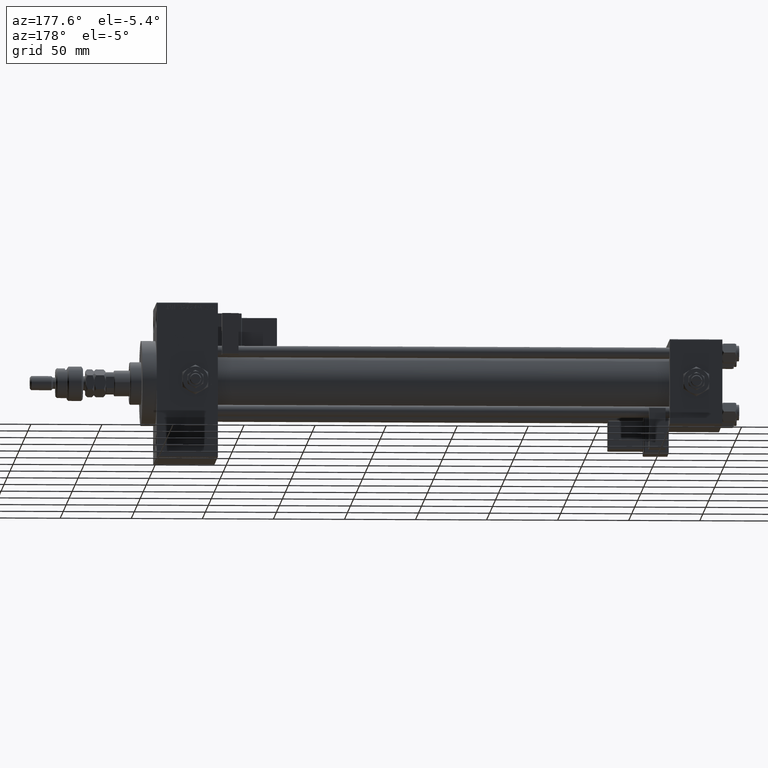
[diagram: clean part render]
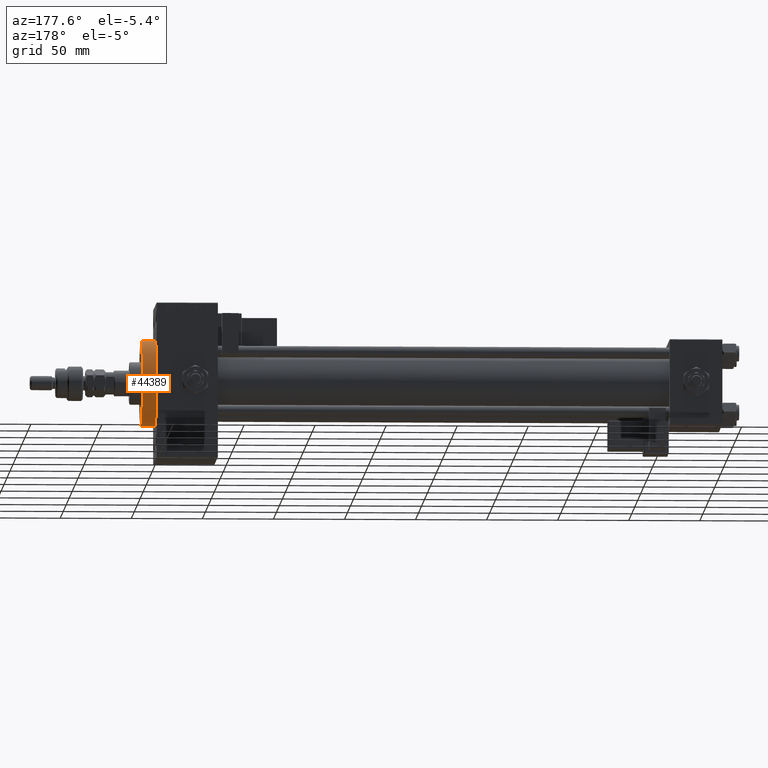
[diagram: same view with one face highlighted and labeled with its STEP entity id]
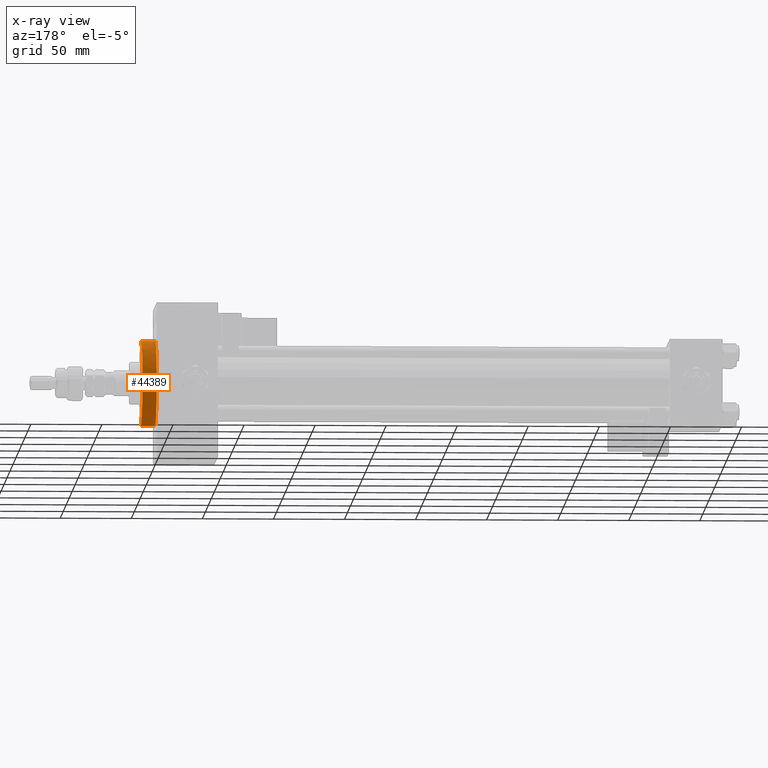
[diagram: x-ray of the same camera — body ghosted, the highlighted face saturated]
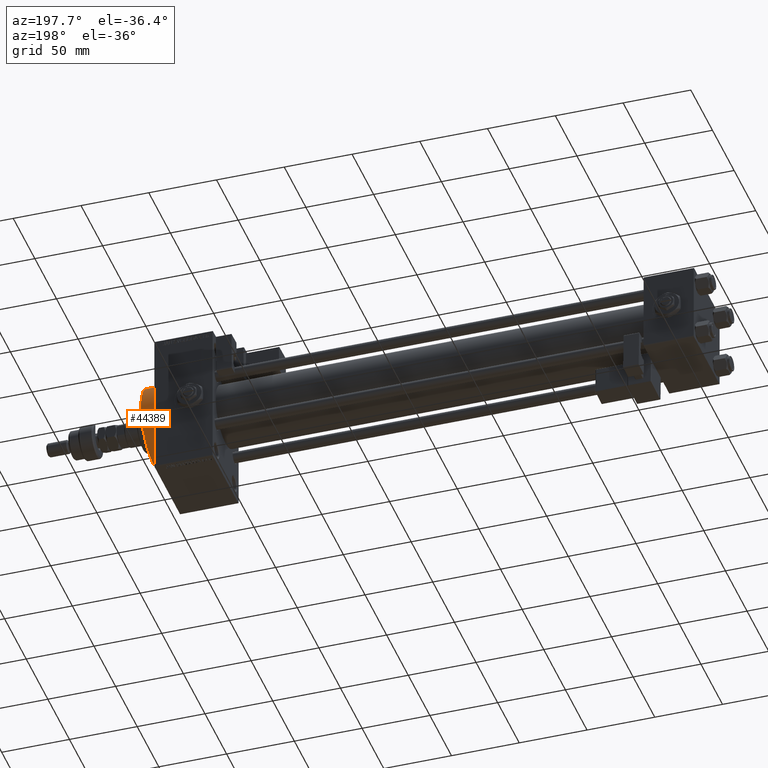
[diagram: same view with one face highlighted and labeled with its STEP entity id]
A machine part, auxiliary view. The second image highlights one B-rep face of the part: STEP entity #44389.
The next image is the same camera in x-ray: the body ghosted, the highlighted face saturated — about 0% of this face is hidden behind the body in this view.
A second angle (auxiliary view) of the same face is appended — the face is thin or edge-on in the first view.
In plain terms, the highlighted cylindrical surface (partial cylindrical patch) has radius 30 mm, axis along (-1, -0, -0).
Its self-contained STEP definition (entity closure, byte-faithful):
#2043 = FACE_OUTER_BOUND ( 'NONE', #20277, .T. ) ;
#2097 = CARTESIAN_POINT ( 'NONE',  ( 408.0000000000000000, 3.673940397442059178E-15, -30.00000000000000000 ) ) ;
#2542 = CARTESIAN_POINT ( 'NONE',  ( 397.9999999999999432, 0.000000000000000000, 0.000000000000000000 ) ) ;
#3106 = CARTESIAN_POINT ( 'NONE',  ( 408.0000000000000000, 3.673940397442059178E-15, -30.00000000000000000 ) ) ;
#5878 = CIRCLE ( 'NONE', #36572, 30.00000000000000000 ) ;
#5930 = LINE ( 'NONE', #2097, #37917 ) ;
#7990 = VERTEX_POINT ( 'NONE', #3106 ) ;
#8471 = AXIS2_PLACEMENT_3D ( 'NONE', #26591, #22215, #43903 ) ;
#11610 = CARTESIAN_POINT ( 'NONE',  ( 397.9999999999999432, 0.000000000000000000, 0.000000000000000000 ) ) ;
#12553 = ORIENTED_EDGE ( 'NONE', *, *, #53541, .T. ) ;
#13686 = VECTOR ( 'NONE', #38417, 1000.000000000000000 ) ;
#16003 = DIRECTION ( 'NONE',  ( 1.000000000000000000, 0.000000000000000000, 0.000000000000000000 ) ) ;
#19975 = EDGE_CURVE ( 'NONE', #32734, #51389, #32950, .T. ) ;
#20206 = EDGE_CURVE ( 'NONE', #38227, #51389, #46922, .T. ) ;
#20277 = EDGE_LOOP ( 'NONE', ( #34336, #12553, #51189, #39435, #35361 ) ) ;
#22215 = DIRECTION ( 'NONE',  ( 1.000000000000000000, 0.000000000000000000, 0.000000000000000000 ) ) ;
#23366 = EDGE_CURVE ( 'NONE', #7990, #38227, #26821, .T. ) ;
#23385 = DIRECTION ( 'NONE',  ( 1.000000000000000000, 0.000000000000000000, 0.000000000000000000 ) ) ;
#23745 = DIRECTION ( 'NONE',  ( -1.000000000000000000, -0.000000000000000000, -0.000000000000000000 ) ) ;
#24501 = DIRECTION ( 'NONE',  ( 0.000000000000000000, 0.000000000000000000, -1.000000000000000000 ) ) ;
#26360 = AXIS2_PLACEMENT_3D ( 'NONE', #30848, #52296, #47627 ) ;
#26591 = CARTESIAN_POINT ( 'NONE',  ( 408.0000000000000000, 0.000000000000000000, 0.000000000000000000 ) ) ;
#26821 = CIRCLE ( 'NONE', #8471, 30.00000000000000000 ) ;
#30848 = CARTESIAN_POINT ( 'NONE',  ( 408.0000000000000000, 0.000000000000000000, 0.000000000000000000 ) ) ;
#31192 = CARTESIAN_POINT ( 'NONE',  ( 397.9999999999999432, 3.673940397442059178E-15, -30.00000000000000000 ) ) ;
#32734 = VERTEX_POINT ( 'NONE', #47557 ) ;
#32950 = CIRCLE ( 'NONE', #39114, 30.00000000000000000 ) ;
#33512 = CARTESIAN_POINT ( 'NONE',  ( 397.9999999999999432, 0.000000000000000000, 30.00000000000000000 ) ) ;
#33813 = EDGE_CURVE ( 'NONE', #47349, #32734, #5878, .T. ) ;
#34336 = ORIENTED_EDGE ( 'NONE', *, *, #23366, .F. ) ;
#35361 = ORIENTED_EDGE ( 'NONE', *, *, #20206, .F. ) ;
#35525 = CYLINDRICAL_SURFACE ( 'NONE', #26360, 30.00000000000000000 ) ;
#36572 = AXIS2_PLACEMENT_3D ( 'NONE', #11610, #16003, #24501 ) ;
#37917 = VECTOR ( 'NONE', #23745, 1000.000000000000000 ) ;
#38227 = VERTEX_POINT ( 'NONE', #49730 ) ;
#38417 = DIRECTION ( 'NONE',  ( -1.000000000000000000, -0.000000000000000000, -0.000000000000000000 ) ) ;
#38679 = CARTESIAN_POINT ( 'NONE',  ( 408.0000000000000000, 0.000000000000000000, 30.00000000000000000 ) ) ;
#39114 = AXIS2_PLACEMENT_3D ( 'NONE', #2542, #23385, #40145 ) ;
#39435 = ORIENTED_EDGE ( 'NONE', *, *, #19975, .T. ) ;
#40145 = DIRECTION ( 'NONE',  ( 0.000000000000000000, 0.000000000000000000, -1.000000000000000000 ) ) ;
#43903 = DIRECTION ( 'NONE',  ( 0.000000000000000000, 0.000000000000000000, -1.000000000000000000 ) ) ;
#44389 = ADVANCED_FACE ( 'NONE', ( #2043 ), #35525, .T. ) ;
#46922 = LINE ( 'NONE', #38679, #13686 ) ;
#47349 = VERTEX_POINT ( 'NONE', #31192 ) ;
#47557 = CARTESIAN_POINT ( 'NONE',  ( 397.9999999999999432, 30.00000000000000000, 0.000000000000000000 ) ) ;
#47627 = DIRECTION ( 'NONE',  ( 0.000000000000000000, 0.000000000000000000, 1.000000000000000000 ) ) ;
#49730 = CARTESIAN_POINT ( 'NONE',  ( 408.0000000000000000, 0.000000000000000000, 30.00000000000000000 ) ) ;
#51189 = ORIENTED_EDGE ( 'NONE', *, *, #33813, .T. ) ;
#51389 = VERTEX_POINT ( 'NONE', #33512 ) ;
#52296 = DIRECTION ( 'NONE',  ( -1.000000000000000000, -0.000000000000000000, -0.000000000000000000 ) ) ;
#53541 = EDGE_CURVE ( 'NONE', #7990, #47349, #5930, .T. ) ;